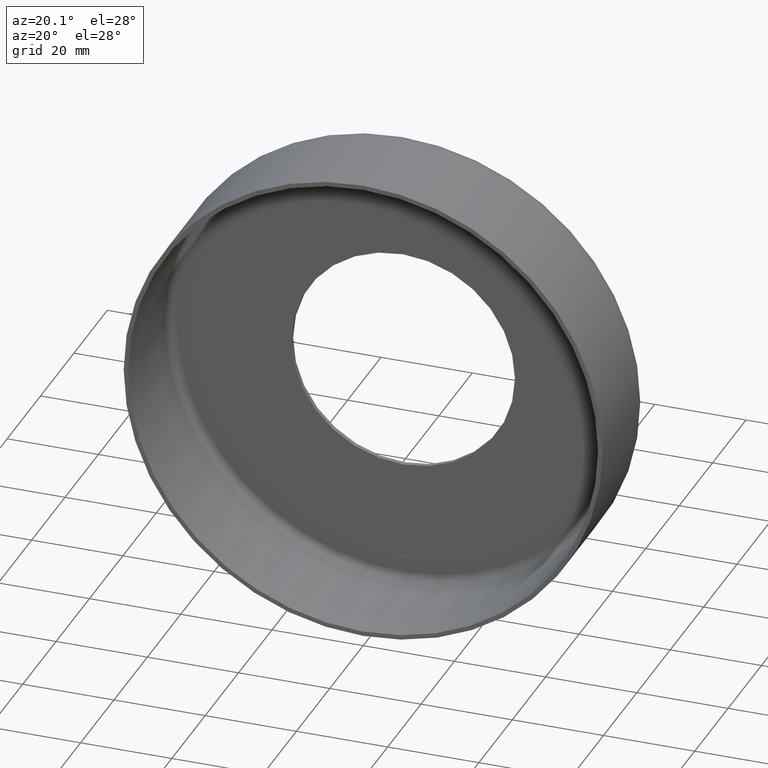
[diagram: clean part render]
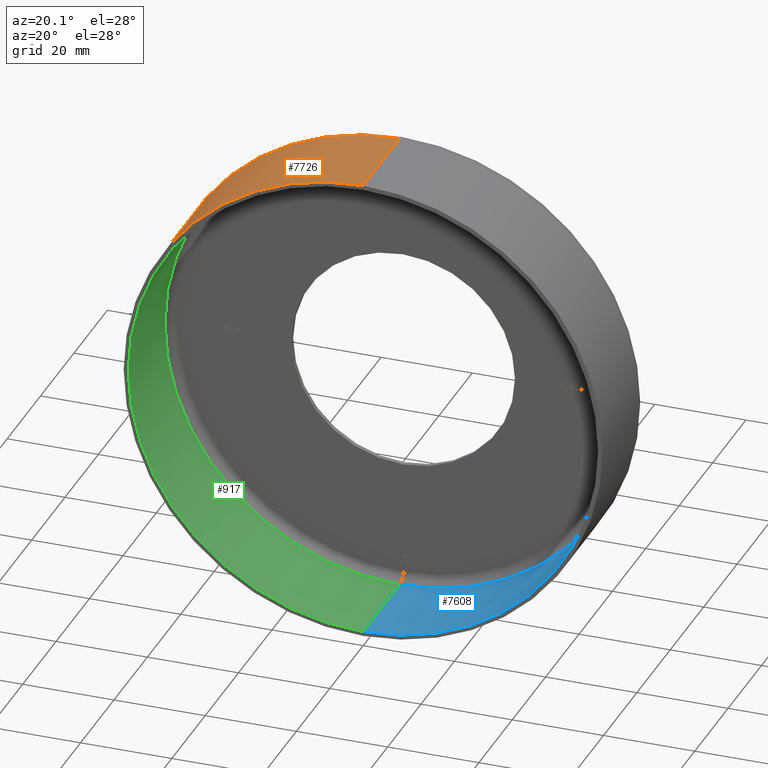
[diagram: same view with three faces highlighted in distinct colors, each labeled with its STEP entity id]
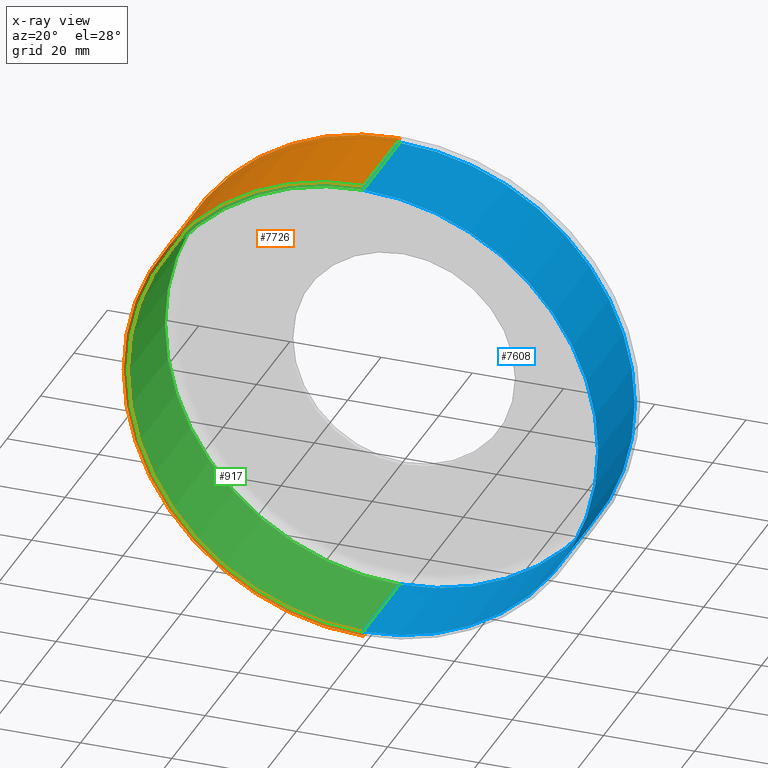
[diagram: x-ray of the same camera — body ghosted, the three highlighted faces saturated]
A machine part, auxiliary view with three faces highlighted in distinct colors.
The next image is the same camera in x-ray (body ghosted, the three faces saturated) — at least one of them is partly hidden behind the body in this view.
Their STEP definitions:

[orange] entity #7726 — the highlighted cylindrical surface (partial cylindrical patch) has radius 52.5 mm, axis along (-0, -1, -0).
#537 = ORIENTED_EDGE ( 'NONE', *, *, #5159, .T. ) ;
#640 = ORIENTED_EDGE ( 'NONE', *, *, #10284, .F. ) ;
#1355 = CYLINDRICAL_SURFACE ( 'NONE', #6461, 52.50000000000000711 ) ;
#1597 = EDGE_LOOP ( 'NONE', ( #13497, #12296, #537, #640 ) ) ;
#3449 = CARTESIAN_POINT ( 'NONE',  ( 0.000000000000000000, 0.000000000000000000, 0.000000000000000000 ) ) ;
#3501 = DIRECTION ( 'NONE',  ( -0.000000000000000000, -1.000000000000000000, -0.000000000000000000 ) ) ;
#3821 = DIRECTION ( 'NONE',  ( 0.000000000000000000, 0.000000000000000000, -1.000000000000000000 ) ) ;
#3922 = LINE ( 'NONE', #4645, #4905 ) ;
#4309 = AXIS2_PLACEMENT_3D ( 'NONE', #5232, #13996, #3821 ) ;
#4645 = CARTESIAN_POINT ( 'NONE',  ( 0.000000000000000000, 0.000000000000000000, -52.50000000000000711 ) ) ;
#4841 = VERTEX_POINT ( 'NONE', #12808 ) ;
#4905 = VECTOR ( 'NONE', #6057, 1000.000000000000000 ) ;
#5159 = EDGE_CURVE ( 'NONE', #9065, #11300, #3922, .T. ) ;
#5232 = CARTESIAN_POINT ( 'NONE',  ( 0.000000000000000000, 0.000000000000000000, 0.000000000000000000 ) ) ;
#5435 = CARTESIAN_POINT ( 'NONE',  ( 0.000000000000000000, 0.000000000000000000, -52.50000000000000711 ) ) ;
#5551 = CARTESIAN_POINT ( 'NONE',  ( 0.000000000000000000, 22.00000000000000355, 0.000000000000000000 ) ) ;
#5784 = DIRECTION ( 'NONE',  ( -0.000000000000000000, -1.000000000000000000, -0.000000000000000000 ) ) ;
#6057 = DIRECTION ( 'NONE',  ( -0.000000000000000000, -1.000000000000000000, -0.000000000000000000 ) ) ;
#6326 = DIRECTION ( 'NONE',  ( -0.000000000000000000, -1.000000000000000000, -0.000000000000000000 ) ) ;
#6461 = AXIS2_PLACEMENT_3D ( 'NONE', #3449, #3501, #13572 ) ;
#6798 = DIRECTION ( 'NONE',  ( 0.000000000000000000, 0.000000000000000000, -1.000000000000000000 ) ) ;
#7025 = VECTOR ( 'NONE', #6326, 1000.000000000000000 ) ;
#7726 = ADVANCED_FACE ( 'NONE', ( #14289 ), #1355, .T. ) ;
#8583 = LINE ( 'NONE', #14957, #7025 ) ;
#8818 = CARTESIAN_POINT ( 'NONE',  ( 0.000000000000000000, 22.00000000000000355, -52.50000000000000711 ) ) ;
#9065 = VERTEX_POINT ( 'NONE', #8818 ) ;
#10182 = AXIS2_PLACEMENT_3D ( 'NONE', #5551, #5784, #6798 ) ;
#10284 = EDGE_CURVE ( 'NONE', #10697, #11300, #13831, .T. ) ;
#10486 = CIRCLE ( 'NONE', #10182, 52.50000000000000711 ) ;
#10697 = VERTEX_POINT ( 'NONE', #13810 ) ;
#11300 = VERTEX_POINT ( 'NONE', #5435 ) ;
#11487 = EDGE_CURVE ( 'NONE', #4841, #9065, #10486, .T. ) ;
#12296 = ORIENTED_EDGE ( 'NONE', *, *, #11487, .T. ) ;
#12389 = EDGE_CURVE ( 'NONE', #4841, #10697, #8583, .T. ) ;
#12808 = CARTESIAN_POINT ( 'NONE',  ( 6.429395695523604744E-15, 22.00000000000000355, 52.50000000000000711 ) ) ;
#13497 = ORIENTED_EDGE ( 'NONE', *, *, #12389, .F. ) ;
#13572 = DIRECTION ( 'NONE',  ( 0.000000000000000000, 0.000000000000000000, -1.000000000000000000 ) ) ;
#13810 = CARTESIAN_POINT ( 'NONE',  ( 6.429395695523604744E-15, 0.000000000000000000, 52.50000000000000711 ) ) ;
#13831 = CIRCLE ( 'NONE', #4309, 52.50000000000000711 ) ;
#13996 = DIRECTION ( 'NONE',  ( -0.000000000000000000, -1.000000000000000000, -0.000000000000000000 ) ) ;
#14289 = FACE_OUTER_BOUND ( 'NONE', #1597, .T. ) ;
#14957 = CARTESIAN_POINT ( 'NONE',  ( 6.429395695523604744E-15, 0.000000000000000000, 52.50000000000000711 ) ) ;

[blue] entity #7608 — the highlighted cylindrical surface (partial cylindrical patch) has radius 51.5 mm, axis along (-0, -1, -0).
#27 = VECTOR ( 'NONE', #6917, 1000.000000000000000 ) ;
#735 = ORIENTED_EDGE ( 'NONE', *, *, #15889, .T. ) ;
#778 = VERTEX_POINT ( 'NONE', #9295 ) ;
#1001 = VECTOR ( 'NONE', #5224, 1000.000000000000000 ) ;
#1361 = CARTESIAN_POINT ( 'NONE',  ( 0.000000000000000000, 22.00000000000000355, -51.50000000000000711 ) ) ;
#1479 = ORIENTED_EDGE ( 'NONE', *, *, #3100, .T. ) ;
#1629 = CIRCLE ( 'NONE', #11180, 51.50000000000000711 ) ;
#1895 = CARTESIAN_POINT ( 'NONE',  ( 0.000000000000000000, 0.000000000000000000, -51.50000000000000711 ) ) ;
#2255 = DIRECTION ( 'NONE',  ( -0.000000000000000000, -1.000000000000000000, -0.000000000000000000 ) ) ;
#2318 = ORIENTED_EDGE ( 'NONE', *, *, #12802, .F. ) ;
#2708 = CARTESIAN_POINT ( 'NONE',  ( 6.306931015608869596E-15, 22.00000000000000355, 51.50000000000000711 ) ) ;
#2709 = CARTESIAN_POINT ( 'NONE',  ( 6.306931015608869596E-15, 0.000000000000000000, 51.50000000000000711 ) ) ;
#2774 = LINE ( 'NONE', #1895, #27 ) ;
#3100 = EDGE_CURVE ( 'NONE', #4986, #778, #1629, .T. ) ;
#3123 = CARTESIAN_POINT ( 'NONE',  ( 0.000000000000000000, 0.000000000000000000, 0.000000000000000000 ) ) ;
#3621 = DIRECTION ( 'NONE',  ( 0.000000000000000000, 0.000000000000000000, -1.000000000000000000 ) ) ;
#4986 = VERTEX_POINT ( 'NONE', #15680 ) ;
#5224 = DIRECTION ( 'NONE',  ( -0.000000000000000000, -1.000000000000000000, -0.000000000000000000 ) ) ;
#5239 = EDGE_CURVE ( 'NONE', #8499, #778, #15518, .T. ) ;
#5864 = DIRECTION ( 'NONE',  ( 0.000000000000000000, 0.000000000000000000, -1.000000000000000000 ) ) ;
#6917 = DIRECTION ( 'NONE',  ( -0.000000000000000000, -1.000000000000000000, -0.000000000000000000 ) ) ;
#7345 = CARTESIAN_POINT ( 'NONE',  ( 0.000000000000000000, 22.00000000000000355, 0.000000000000000000 ) ) ;
#7608 = ADVANCED_FACE ( 'NONE', ( #12319 ), #15267, .F. ) ;
#7992 = DIRECTION ( 'NONE',  ( -0.000000000000000000, -1.000000000000000000, -0.000000000000000000 ) ) ;
#8499 = VERTEX_POINT ( 'NONE', #2708 ) ;
#9295 = CARTESIAN_POINT ( 'NONE',  ( 6.306931015608869596E-15, -1.224646799147353207E-16, 51.50000000000000711 ) ) ;
#9510 = VERTEX_POINT ( 'NONE', #1361 ) ;
#9836 = EDGE_LOOP ( 'NONE', ( #16193, #2318, #735, #1479 ) ) ;
#10460 = DIRECTION ( 'NONE',  ( 0.000000000000000000, 0.000000000000000000, -1.000000000000000000 ) ) ;
#11180 = AXIS2_PLACEMENT_3D ( 'NONE', #11825, #7992, #10460 ) ;
#11825 = CARTESIAN_POINT ( 'NONE',  ( 0.000000000000000000, -1.224646799147353207E-16, 0.000000000000000000 ) ) ;
#11987 = DIRECTION ( 'NONE',  ( -0.000000000000000000, -1.000000000000000000, -0.000000000000000000 ) ) ;
#12319 = FACE_OUTER_BOUND ( 'NONE', #9836, .T. ) ;
#12618 = CIRCLE ( 'NONE', #15461, 51.50000000000000711 ) ;
#12802 = EDGE_CURVE ( 'NONE', #9510, #8499, #12618, .T. ) ;
#15267 = CYLINDRICAL_SURFACE ( 'NONE', #15760, 51.50000000000000711 ) ;
#15461 = AXIS2_PLACEMENT_3D ( 'NONE', #7345, #2255, #3621 ) ;
#15518 = LINE ( 'NONE', #2709, #1001 ) ;
#15680 = CARTESIAN_POINT ( 'NONE',  ( 0.000000000000000000, -1.224646799147353207E-16, -51.50000000000000711 ) ) ;
#15760 = AXIS2_PLACEMENT_3D ( 'NONE', #3123, #11987, #5864 ) ;
#15889 = EDGE_CURVE ( 'NONE', #9510, #4986, #2774, .T. ) ;
#16193 = ORIENTED_EDGE ( 'NONE', *, *, #5239, .F. ) ;

[green] entity #917 — the highlighted cylindrical surface (partial cylindrical patch) has radius 51.5 mm, axis along (-0, -1, -0).
#27 = VECTOR ( 'NONE', #6917, 1000.000000000000000 ) ;
#272 = FACE_OUTER_BOUND ( 'NONE', #8096, .T. ) ;
#778 = VERTEX_POINT ( 'NONE', #9295 ) ;
#816 = ORIENTED_EDGE ( 'NONE', *, *, #5239, .T. ) ;
#917 = ADVANCED_FACE ( 'NONE', ( #272 ), #7916, .F. ) ;
#1001 = VECTOR ( 'NONE', #5224, 1000.000000000000000 ) ;
#1361 = CARTESIAN_POINT ( 'NONE',  ( 0.000000000000000000, 22.00000000000000355, -51.50000000000000711 ) ) ;
#1895 = CARTESIAN_POINT ( 'NONE',  ( 0.000000000000000000, 0.000000000000000000, -51.50000000000000711 ) ) ;
#2708 = CARTESIAN_POINT ( 'NONE',  ( 6.306931015608869596E-15, 22.00000000000000355, 51.50000000000000711 ) ) ;
#2709 = CARTESIAN_POINT ( 'NONE',  ( 6.306931015608869596E-15, 0.000000000000000000, 51.50000000000000711 ) ) ;
#2774 = LINE ( 'NONE', #1895, #27 ) ;
#2813 = DIRECTION ( 'NONE',  ( 0.000000000000000000, 0.000000000000000000, -1.000000000000000000 ) ) ;
#3792 = AXIS2_PLACEMENT_3D ( 'NONE', #9229, #12773, #2813 ) ;
#4038 = CIRCLE ( 'NONE', #3792, 51.50000000000000711 ) ;
#4468 = CARTESIAN_POINT ( 'NONE',  ( 0.000000000000000000, 0.000000000000000000, 0.000000000000000000 ) ) ;
#4760 = DIRECTION ( 'NONE',  ( -0.000000000000000000, -1.000000000000000000, -0.000000000000000000 ) ) ;
#4986 = VERTEX_POINT ( 'NONE', #15680 ) ;
#5224 = DIRECTION ( 'NONE',  ( -0.000000000000000000, -1.000000000000000000, -0.000000000000000000 ) ) ;
#5239 = EDGE_CURVE ( 'NONE', #8499, #778, #15518, .T. ) ;
#5913 = EDGE_CURVE ( 'NONE', #778, #4986, #9224, .T. ) ;
#6069 = ORIENTED_EDGE ( 'NONE', *, *, #5913, .T. ) ;
#6917 = DIRECTION ( 'NONE',  ( -0.000000000000000000, -1.000000000000000000, -0.000000000000000000 ) ) ;
#7916 = CYLINDRICAL_SURFACE ( 'NONE', #15182, 51.50000000000000711 ) ;
#8096 = EDGE_LOOP ( 'NONE', ( #13547, #816, #6069, #11057 ) ) ;
#8353 = DIRECTION ( 'NONE',  ( -0.000000000000000000, -1.000000000000000000, -0.000000000000000000 ) ) ;
#8499 = VERTEX_POINT ( 'NONE', #2708 ) ;
#9224 = CIRCLE ( 'NONE', #9650, 51.50000000000000711 ) ;
#9229 = CARTESIAN_POINT ( 'NONE',  ( 0.000000000000000000, 22.00000000000000355, 0.000000000000000000 ) ) ;
#9295 = CARTESIAN_POINT ( 'NONE',  ( 6.306931015608869596E-15, -1.224646799147353207E-16, 51.50000000000000711 ) ) ;
#9510 = VERTEX_POINT ( 'NONE', #1361 ) ;
#9650 = AXIS2_PLACEMENT_3D ( 'NONE', #15011, #4760, #13534 ) ;
#10105 = EDGE_CURVE ( 'NONE', #8499, #9510, #4038, .T. ) ;
#11057 = ORIENTED_EDGE ( 'NONE', *, *, #15889, .F. ) ;
#12773 = DIRECTION ( 'NONE',  ( -0.000000000000000000, -1.000000000000000000, -0.000000000000000000 ) ) ;
#13241 = DIRECTION ( 'NONE',  ( 0.000000000000000000, 0.000000000000000000, -1.000000000000000000 ) ) ;
#13534 = DIRECTION ( 'NONE',  ( 0.000000000000000000, 0.000000000000000000, -1.000000000000000000 ) ) ;
#13547 = ORIENTED_EDGE ( 'NONE', *, *, #10105, .F. ) ;
#15011 = CARTESIAN_POINT ( 'NONE',  ( 0.000000000000000000, -1.224646799147353207E-16, 0.000000000000000000 ) ) ;
#15182 = AXIS2_PLACEMENT_3D ( 'NONE', #4468, #8353, #13241 ) ;
#15518 = LINE ( 'NONE', #2709, #1001 ) ;
#15680 = CARTESIAN_POINT ( 'NONE',  ( 0.000000000000000000, -1.224646799147353207E-16, -51.50000000000000711 ) ) ;
#15889 = EDGE_CURVE ( 'NONE', #9510, #4986, #2774, .T. ) ;